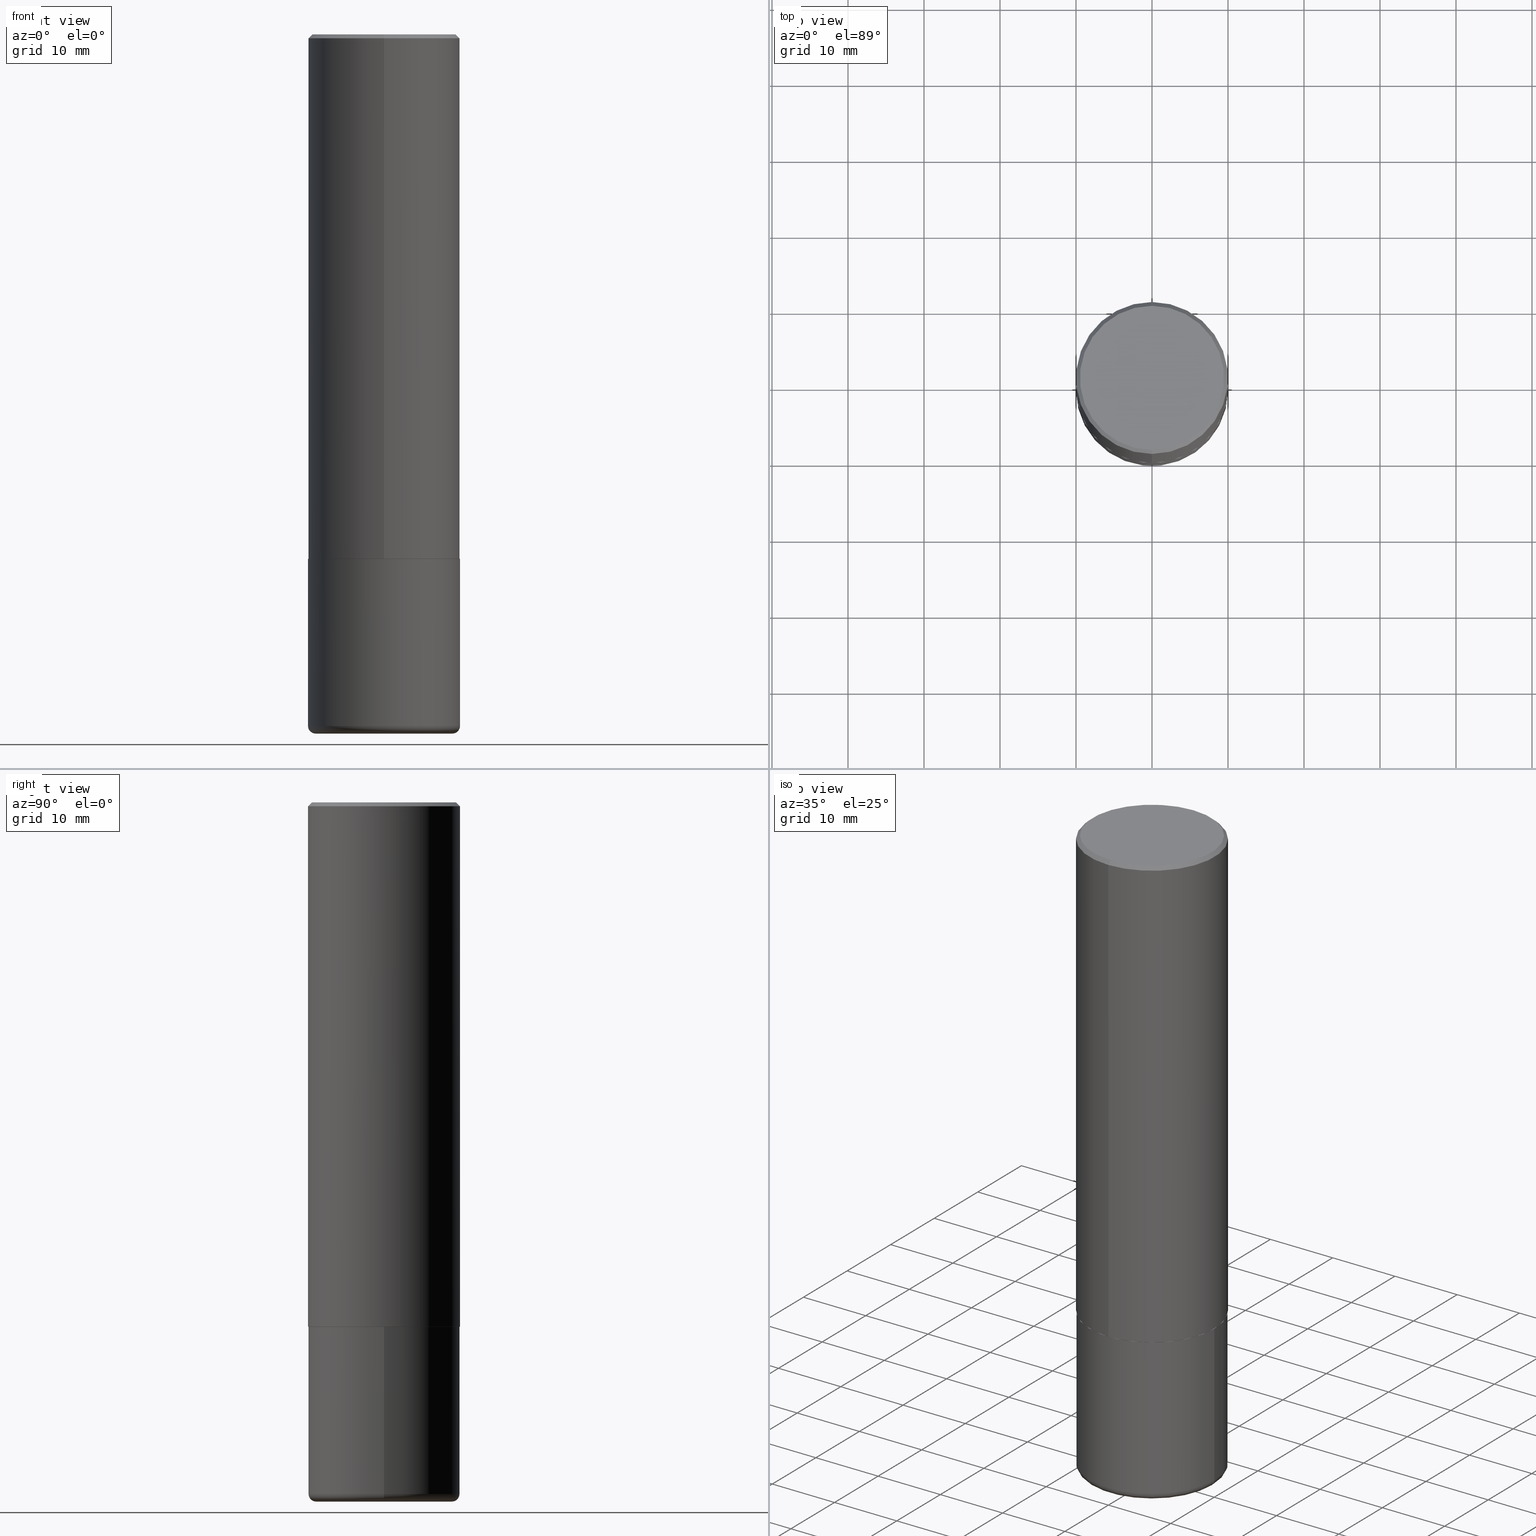
[diagram: canonical four-view strip — front | top / right | iso, engineering-drawing reading convention]
A machine part, canonical four-view strip (front | top / right | iso — engineering-drawing reading convention). The complete STEP part file that produces these views, byte-faithful:
ISO-10303-21;
HEADER;
FILE_DESCRIPTION (( 'STEP AP203' ),
    '1' );
FILE_NAME ('48020.STEP',
    '2024-03-06T19:45:52',
    ( '' ),
    ( '' ),
    'SwSTEP 2.0',
    'SolidWorks 2023',
    '' );
FILE_SCHEMA (( 'CONFIG_CONTROL_DESIGN' ));
ENDSEC;

DATA;
#1 = CARTESIAN_POINT ( 'NONE',  ( 6.641805514718476328E-29, -9.479492231809431685E-15, -2.715500000000000025 ) ) ;
#2 = AXIS2_PLACEMENT_3D ( 'NONE', #28, #180, #24 ) ;
#3 = DIRECTION ( 'NONE',  ( -2.445886766605957047E-29, 3.490882795731700761E-15, 1.000000000000000000 ) ) ;
#4 = APPLICATION_PROTOCOL_DEFINITION ( 'international standard', 'config_control_design', 1994, #119 ) ;
#5 = PERSON_AND_ORGANIZATION ( #239, #131 ) ;
#6 = EDGE_CURVE ( 'NONE', #293, #101, #318, .T. ) ;
#7 = LINE ( 'NONE', #242, #141 ) ;
#8 = EDGE_CURVE ( 'NONE', #14, #297, #207, .T. ) ;
#9 = ORIENTED_EDGE ( 'NONE', *, *, #311, .T. ) ;
#10 = SECURITY_CLASSIFICATION_LEVEL ( 'unclassified' ) ;
#11 = PLANE ( 'NONE',  #305 ) ;
#12 = EDGE_CURVE ( 'NONE', #103, #386, #308, .T. ) ;
#13 = APPROVAL_STATUS ( 'not_yet_approved' ) ;
#14 = VERTEX_POINT ( 'NONE', #49 ) ;
#15 = DIRECTION ( 'NONE',  ( -2.445886766605956767E-29, 3.490882795731700761E-15, 1.000000000000000000 ) ) ;
#16 = CLOSED_SHELL ( 'NONE', ( #216, #237, #290, #247, #115, #138 ) ) ;
#17 = LOCAL_TIME ( 14, 45, 52.00000000000000000, #325 ) ;
#18 = CARTESIAN_POINT ( 'NONE',  ( 8.857488016002564476E-29, -1.264614540928987199E-14, -3.621999999999999886 ) ) ;
#19 = ORIENTED_EDGE ( 'NONE', *, *, #272, .F. ) ;
#20 = DIRECTION ( 'NONE',  ( -2.445468806185136597E-29, 3.491481338843145583E-15, 1.000000000000000000 ) ) ;
#21 = CIRCLE ( 'NONE', #382, 0.3937000000000003830 ) ;
#22 = DIRECTION ( 'NONE',  ( -2.445886766605957047E-29, 3.490882795731700761E-15, 1.000000000000000000 ) ) ;
#23 = APPROVAL ( #13, 'UNSPECIFIED' ) ;
#24 = DIRECTION ( 'NONE',  ( 6.982962677686265133E-15, 1.000000000000000000, -3.491137977679279424E-15 ) ) ;
#25 = CARTESIAN_POINT ( 'NONE',  ( 2.749192406205083217E-15, 0.3936999999999999389, -0.02000000000000146105 ) ) ;
#26 = CIRCLE ( 'NONE', #232, 0.3937000000000000499 ) ;
#27 = AXIS2_PLACEMENT_3D ( 'NONE', #18, #20, #133 ) ;
#28 = CARTESIAN_POINT ( 'NONE',  ( 4.891773533211934694E-31, -6.981765591463430858E-17, -0.02000000000000008715 ) ) ;
#29 = DIRECTION ( 'NONE',  ( -2.445468806185136597E-29, 3.491481338843145583E-15, 1.000000000000000000 ) ) ;
#30 = VERTEX_POINT ( 'NONE', #234 ) ;
#31 = VECTOR ( 'NONE', #59, 39.37007874015748143 ) ;
#32 = VERTEX_POINT ( 'NONE', #364 ) ;
#33 = DIRECTION ( 'NONE',  ( 1.000000000000000000, -6.982962677686265922E-15, 4.876176775795935793E-29 ) ) ;
#34 = DIRECTION ( 'NONE',  ( -2.445468806185136597E-29, 3.491481338843145583E-15, 1.000000000000000000 ) ) ;
#35 = DATE_AND_TIME ( #296, #220 ) ;
#36 = EDGE_LOOP ( 'NONE', ( #288, #74, #71, #347 ) ) ;
#37 = CARTESIAN_POINT ( 'NONE',  ( 2.749192406205083217E-15, 0.3936999999999999389, -0.02000000000000146105 ) ) ;
#38 = CC_DESIGN_DATE_AND_TIME_ASSIGNMENT ( #338, #369, ( #273 ) ) ;
#39 = DIRECTION ( 'NONE',  ( -2.445886766605957047E-29, 3.490882795731700761E-15, 1.000000000000000000 ) ) ;
#40 = DIRECTION ( 'NONE',  ( 1.000000000000000000, 0.000000000000000000, 0.000000000000000000 ) ) ;
#41 = CONICAL_SURFACE ( 'NONE', #183, 0.3937000000000000499, 0.7853981633974467247 ) ;
#42 = ADVANCED_FACE ( 'NONE', ( #334 ), #235, .T. ) ;
#43 = DIRECTION ( 'NONE',  ( -6.982962677686265133E-15, -1.000000000000000000, 4.173946514383900962E-15 ) ) ;
#44 = LOCAL_TIME ( 14, 45, 52.00000000000000000, #174 ) ;
#45 = CARTESIAN_POINT ( 'NONE',  ( 6.644251401485081730E-29, -9.482983114605163631E-15, -2.716499999999999915 ) ) ;
#46 = CARTESIAN_POINT ( 'NONE',  ( -2.742209443527330149E-15, -0.3927000000000095414, -2.716499999999998138 ) ) ;
#47 = PERSON_AND_ORGANIZATION_ROLE ( 'design_supplier' ) ;
#48 = EDGE_CURVE ( 'NONE', #103, #317, #194, .T. ) ;
#49 = CARTESIAN_POINT ( 'NONE',  ( -0.3542999999999999483, -9.919933395171885327E-15, -3.621999999999999886 ) ) ;
#50 = ORIENTED_EDGE ( 'NONE', *, *, #76, .T. ) ;
#51 = EDGE_LOOP ( 'NONE', ( #129, #50 ) ) ;
#52 = AXIS2_PLACEMENT_3D ( 'NONE', #380, #411, #185 ) ;
#53 = CC_DESIGN_APPROVAL ( #23, ( #351 ) ) ;
#54 = ORIENTED_EDGE ( 'NONE', *, *, #278, .T. ) ;
#55 = CYLINDRICAL_SURFACE ( 'NONE', #350, 0.3937000000000002164 ) ;
#56 = CARTESIAN_POINT ( 'NONE',  ( -2.742209443527330149E-15, -0.3927000000000095414, -2.716499999999998138 ) ) ;
#57 = DIRECTION ( 'NONE',  ( -6.982962677686265922E-15, -1.000000000000000000, 3.490882795731701156E-15 ) ) ;
#58 = ORIENTED_EDGE ( 'NONE', *, *, #213, .F. ) ;
#59 = DIRECTION ( 'NONE',  ( -2.445886766605957047E-29, 3.490882795731700761E-15, 1.000000000000000000 ) ) ;
#60 = TOROIDAL_SURFACE ( 'NONE', #197, 0.3543000000000000038, 0.03940000000000005997 ) ;
#61 = AXIS2_PLACEMENT_3D ( 'NONE', #259, #15, #86 ) ;
#62 = FACE_OUTER_BOUND ( 'NONE', #366, .T. ) ;
#63 = DIRECTION ( 'NONE',  ( 7.105427357601001859E-15, 1.000000000000000000, -3.491481338843145583E-15 ) ) ;
#64 = DIRECTION ( 'NONE',  ( -2.445468806185136877E-29, 3.491481338843145188E-15, 1.000000000000000000 ) ) ;
#65 = LOCAL_TIME ( 14, 45, 52.00000000000000000, #389 ) ;
#66 = DIRECTION ( 'NONE',  ( -6.982962677686266711E-15, -1.000000000000000000, 3.491481338843145583E-15 ) ) ;
#67 = APPROVAL_ROLE ( '' ) ;
#68 = CC_DESIGN_PERSON_AND_ORGANIZATION_ASSIGNMENT ( #287, #198, ( #337 ) ) ;
#69 = DIRECTION ( 'NONE',  ( -2.445886766605957047E-29, 3.490882795731700761E-15, 1.000000000000000000 ) ) ;
#70 = DATE_AND_TIME ( #125, #65 ) ;
#71 = ORIENTED_EDGE ( 'NONE', *, *, #348, .F. ) ;
#72 = DIMENSIONAL_EXPONENTS ( 1.000000000000000000, 0.000000000000000000, 0.000000000000000000, 0.000000000000000000, 0.000000000000000000, 0.000000000000000000, 0.000000000000000000 ) ;
#73 = DIRECTION ( 'NONE',  ( -6.982962677686265133E-15, -1.000000000000000000, 3.490882795731700761E-15 ) ) ;
#74 = ORIENTED_EDGE ( 'NONE', *, *, #270, .T. ) ;
#75 = CIRCLE ( 'NONE', #361, 0.3926999999999999935 ) ;
#76 = EDGE_CURVE ( 'NONE', #293, #289, #168, .T. ) ;
#77 = VECTOR ( 'NONE', #231, 39.37007874015748143 ) ;
#78 = DIRECTION ( 'NONE',  ( 2.445886766605957047E-29, -3.490882795731700761E-15, -1.000000000000000000 ) ) ;
#79 = CARTESIAN_POINT ( 'NONE',  ( 0.000000000000000000, 0.000000000000000000, 0.000000000000000000 ) ) ;
#80 = UNCERTAINTY_MEASURE_WITH_UNIT (LENGTH_MEASURE( 1.000000000000000082E-05 ), #245, 'distance_accuracy_value', 'NONE');
#81 = ORIENTED_EDGE ( 'NONE', *, *, #48, .F. ) ;
#82 = CARTESIAN_POINT ( 'NONE',  ( -2.604603702216768831E-45, 3.717410952095981394E-31, 1.064891366917633652E-16 ) ) ;
#83 = ADVANCED_FACE ( 'NONE', ( #368 ), #298, .F. ) ;
#84 = ORIENTED_EDGE ( 'NONE', *, *, #352, .F. ) ;
#85 = ORIENTED_EDGE ( 'NONE', *, *, #352, .T. ) ;
#86 = DIRECTION ( 'NONE',  ( -6.982962677686265922E-15, -1.000000000000000000, 3.490882795731700761E-15 ) ) ;
#87 = VECTOR ( 'NONE', #166, 39.37007874015748143 ) ;
#88 = EDGE_LOOP ( 'NONE', ( #229, #292, #367, #356 ) ) ;
#89 = DIRECTION ( 'NONE',  ( 5.024295867789434219E-15, 0.7071067811867430830, 0.7071067811863519514 ) ) ;
#90 = CALENDAR_DATE ( 2024, 6, 3 ) ;
#91 = DIRECTION ( 'NONE',  ( -2.445468806185136597E-29, 3.491481338843145583E-15, 1.000000000000000000 ) ) ;
#92 = CIRCLE ( 'NONE', #370, 0.03940000000000005997 ) ;
#93 = EDGE_LOOP ( 'NONE', ( #394, #126, #329, #81 ) ) ;
#94 = DIRECTION ( 'NONE',  ( 1.000000000000000000, -6.982962677686267499E-15, 0.000000000000000000 ) ) ;
#95 = DIRECTION ( 'NONE',  ( -6.982962677686265133E-15, -1.000000000000000000, 4.163344669033670901E-15 ) ) ;
#96 = APPROVAL_DATE_TIME ( #253, #310 ) ;
#97 = DIRECTION ( 'NONE',  ( -2.445468806185136597E-29, 3.491481338843145583E-15, 1.000000000000000000 ) ) ;
#98 = MECHANICAL_CONTEXT ( 'NONE', #119, 'mechanical' ) ;
#99 = ADVANCED_FACE ( 'NONE', ( #205 ), #55, .T. ) ;
#100 = DIRECTION ( 'NONE',  ( -6.982962677686265133E-15, -1.000000000000000000, 4.163344669033670901E-15 ) ) ;
#101 = VERTEX_POINT ( 'NONE', #209 ) ;
#102 = CONICAL_SURFACE ( 'NONE', #2, 0.3937000000000000499, 0.7853981633974467247 ) ;
#103 = VERTEX_POINT ( 'NONE', #56 ) ;
#104 = VERTEX_POINT ( 'NONE', #178 ) ;
#105 = DIRECTION ( 'NONE',  ( -6.982962677686265133E-15, -1.000000000000000000, 4.173946514383900962E-15 ) ) ;
#106 = CC_DESIGN_DATE_AND_TIME_ASSIGNMENT ( #70, #161, ( #337 ) ) ;
#107 = ORIENTED_EDGE ( 'NONE', *, *, #179, .T. ) ;
#108 = ORIENTED_EDGE ( 'NONE', *, *, #6, .T. ) ;
#109 = CIRCLE ( 'NONE', #113, 0.3937000000000000499 ) ;
#110 = TOROIDAL_SURFACE ( 'NONE', #377, 0.3543000000000000038, 0.03940000000000005997 ) ;
#111 =( LENGTH_UNIT ( ) NAMED_UNIT ( * ) SI_UNIT ( $, .METRE. ) );
#112 = LENGTH_MEASURE_WITH_UNIT ( LENGTH_MEASURE( 0.02539999999999999897 ), #111 );
#113 = AXIS2_PLACEMENT_3D ( 'NONE', #193, #39, #286 ) ;
#114 = FACE_OUTER_BOUND ( 'NONE', #171, .T. ) ;
#115 = ADVANCED_FACE ( 'NONE', ( #175 ), #110, .T. ) ;
#116 = CARTESIAN_POINT ( 'NONE',  ( 8.761136545038868759E-29, -1.250858104453945120E-14, -3.582599999999999785 ) ) ;
#117 =( NAMED_UNIT ( * ) SI_UNIT ( $, .STERADIAN. ) SOLID_ANGLE_UNIT ( ) );
#118 = CIRCLE ( 'NONE', #136, 0.03940000000000005997 ) ;
#119 = APPLICATION_CONTEXT ( 'configuration controlled 3d designs of mechanical parts and assemblies' ) ;
#120 = CARTESIAN_POINT ( 'NONE',  ( 8.761136545038868759E-29, -1.250858104453945120E-14, -3.582599999999999785 ) ) ;
#121 = DIRECTION ( 'NONE',  ( -2.445468806185136877E-29, 3.491481338843145188E-15, 1.000000000000000000 ) ) ;
#122 = PERSON_AND_ORGANIZATION ( #239, #131 ) ;
#123 = LINE ( 'NONE', #37, #87 ) ;
#124 = DIRECTION ( 'NONE',  ( 1.000000000000000000, -6.982962677686267499E-15, 0.000000000000000000 ) ) ;
#125 = CALENDAR_DATE ( 2024, 6, 3 ) ;
#126 = ORIENTED_EDGE ( 'NONE', *, *, #134, .T. ) ;
#127 = EDGE_LOOP ( 'NONE', ( #322, #326 ) ) ;
#128 = DIRECTION ( 'NONE',  ( -2.445886766605957047E-29, 3.490882795731700761E-15, 1.000000000000000000 ) ) ;
#129 = ORIENTED_EDGE ( 'NONE', *, *, #374, .T. ) ;
#130 = ORIENTED_EDGE ( 'NONE', *, *, #408, .F. ) ;
#131 = ORGANIZATION ( 'UNSPECIFIED', 'UNSPECIFIED', '' ) ;
#132 = PERSON_AND_ORGANIZATION ( #239, #131 ) ;
#133 = DIRECTION ( 'NONE',  ( 1.000000000000000000, -6.982962677686268288E-15, 0.000000000000000000 ) ) ;
#134 = EDGE_CURVE ( 'NONE', #386, #397, #336, .T. ) ;
#135 = CARTESIAN_POINT ( 'NONE',  ( 8.761136545038868759E-29, -1.250858104453945120E-14, -3.582599999999999785 ) ) ;
#136 = AXIS2_PLACEMENT_3D ( 'NONE', #181, #66, #346 ) ;
#137 = CARTESIAN_POINT ( 'NONE',  ( 2.793854037008781336E-15, 0.3926999999999905011, -2.716500000000001691 ) ) ;
#138 = ADVANCED_FACE ( 'NONE', ( #211 ), #238, .T. ) ;
#139 = DIRECTION ( 'NONE',  ( 1.000000000000000000, -6.982962677686266711E-15, 4.883557194083112340E-29 ) ) ;
#140 = CARTESIAN_POINT ( 'NONE',  ( 2.797406750687549496E-15, 0.3936999999999908906, -2.715500000000001801 ) ) ;
#141 = VECTOR ( 'NONE', #22, 39.37007874015748143 ) ;
#142 =( NAMED_UNIT ( * ) PLANE_ANGLE_UNIT ( ) SI_UNIT ( $, .RADIAN. ) );
#143 = DIRECTION ( 'NONE',  ( 1.000000000000000000, -6.982962677686267499E-15, 0.000000000000000000 ) ) ;
#144 = PRODUCT_DEFINITION_SHAPE ( 'NONE', 'NONE',  #337 ) ;
#145 = ADVANCED_FACE ( 'NONE', ( #212 ), #407, .T. ) ;
#146 = AXIS2_PLACEMENT_3D ( 'NONE', #116, #34, #143 ) ;
#147 = ADVANCED_FACE ( 'NONE', ( #114 ), #102, .T. ) ;
#148 = AXIS2_PLACEMENT_3D ( 'NONE', #323, #263, #43 ) ;
#149 = EDGE_LOOP ( 'NONE', ( #54, #328, #84, #254 ) ) ;
#150 = DIRECTION ( 'NONE',  ( 6.982962677686265922E-15, 1.000000000000000000, -3.490882795731700761E-15 ) ) ;
#151 = APPROVAL_DATE_TIME ( #35, #23 ) ;
#152 = DIRECTION ( 'NONE',  ( 1.000000000000000000, -6.982962677686268288E-15, 0.000000000000000000 ) ) ;
#153 = CARTESIAN_POINT ( 'NONE',  ( 2.679362779428219918E-15, 0.3736999999999999211, -1.198053764073172968E-15 ) ) ;
#154 = PERSON_AND_ORGANIZATION_ROLE ( 'creator' ) ;
#155 = CARTESIAN_POINT ( 'NONE',  ( -2.749192406205018924E-15, -0.3937000000000098754, -2.715499999999998249 ) ) ;
#156 = AXIS2_PLACEMENT_3D ( 'NONE', #358, #128, #73 ) ;
#157 = PERSON_AND_ORGANIZATION_ROLE ( 'design_owner' ) ;
#158 = DIRECTION ( 'NONE',  ( -6.982962677686265133E-15, -1.000000000000000000, 3.490882795731700761E-15 ) ) ;
#159 = DIRECTION ( 'NONE',  ( -6.982962677686265133E-15, -1.000000000000000000, 4.173946514383900962E-15 ) ) ;
#160 = CC_DESIGN_PERSON_AND_ORGANIZATION_ASSIGNMENT ( #324, #47, ( #351 ) ) ;
#161 = DATE_TIME_ROLE ( 'creation_date' ) ;
#162 = ORIENTED_EDGE ( 'NONE', *, *, #48, .T. ) ;
#163 = ORIENTED_EDGE ( 'NONE', *, *, #311, .F. ) ;
#164 = PERSON_AND_ORGANIZATION_ROLE ( 'classification_officer' ) ;
#165 = EDGE_CURVE ( 'NONE', #32, #360, #26, .T. ) ;
#166 = DIRECTION ( 'NONE',  ( 4.937700262164540154E-15, 0.7071067811865440200, -0.7071067811865511255 ) ) ;
#167 = DIRECTION ( 'NONE',  ( -2.445886766605957047E-29, 3.490882795731700761E-15, 1.000000000000000000 ) ) ;
#168 = CIRCLE ( 'NONE', #341, 0.3736999999999999211 ) ;
#169 = ORIENTED_EDGE ( 'NONE', *, *, #408, .T. ) ;
#170 = DIRECTION ( 'NONE',  ( 0.000000000000000000, 0.000000000000000000, 1.000000000000000000 ) ) ;
#171 = EDGE_LOOP ( 'NONE', ( #199, #217, #262, #9 ) ) ;
#172 = APPROVAL_DATE_TIME ( #203, #177 ) ;
#173 = CARTESIAN_POINT ( 'NONE',  ( 2.790301323329979648E-15, 0.3926999999999905011, -2.716500000000001691 ) ) ;
#174 = COORDINATED_UNIVERSAL_TIME_OFFSET ( 5, 0, .BEHIND. ) ;
#175 = FACE_OUTER_BOUND ( 'NONE', #279, .T. ) ;
#176 = CIRCLE ( 'NONE', #146, 0.3937000000000000499 ) ;
#177 = APPROVAL ( #208, 'UNSPECIFIED' ) ;
#178 = CARTESIAN_POINT ( 'NONE',  ( -0.3937000000000001054, -9.711174293851935623E-15, -3.582599999999999785 ) ) ;
#179 = EDGE_CURVE ( 'NONE', #317, #101, #214, .T. ) ;
#180 = DIRECTION ( 'NONE',  ( 2.445886766605957047E-29, -3.490882795731700761E-15, -1.000000000000000000 ) ) ;
#181 = CARTESIAN_POINT ( 'NONE',  ( 0.3543000000000000038, -1.498264472124369599E-14, -3.582599999999999785 ) ) ;
#182 = CC_DESIGN_PERSON_AND_ORGANIZATION_ASSIGNMENT ( #284, #154, ( #351 ) ) ;
#183 = AXIS2_PLACEMENT_3D ( 'NONE', #316, #78, #295 ) ;
#184 = CARTESIAN_POINT ( 'NONE',  ( 6.643116012001922516E-29, -9.484609056967403598E-15, -2.716499999999999915 ) ) ;
#185 = DIRECTION ( 'NONE',  ( -6.982962677686265922E-15, -1.000000000000000000, 3.490882795731701156E-15 ) ) ;
#186 = DIRECTION ( 'NONE',  ( 1.000000000000000000, -6.982962677686266711E-15, 4.883557194083112340E-29 ) ) ;
#187 = EDGE_CURVE ( 'NONE', #297, #30, #118, .T. ) ;
#188 = DIRECTION ( 'NONE',  ( -2.445468806185136597E-29, 3.491481338843145583E-15, 1.000000000000000000 ) ) ;
#189 = EDGE_LOOP ( 'NONE', ( #230, #108, #85, #218 ) ) ;
#190 = CARTESIAN_POINT ( 'NONE',  ( -0.3937000000000000499, 2.797406750687514786E-15, -1.936584745033356735E-29 ) ) ;
#191 = APPROVAL_PERSON_ORGANIZATION ( #354, #310, #67 ) ;
#192 = VECTOR ( 'NONE', #89, 39.37007874015748143 ) ;
#193 = CARTESIAN_POINT ( 'NONE',  ( 4.891773533211934694E-31, -6.981765591463430858E-17, -0.02000000000000008715 ) ) ;
#194 = LINE ( 'NONE', #46, #77 ) ;
#195 = FACE_OUTER_BOUND ( 'NONE', #228, .T. ) ;
#196 = CALENDAR_DATE ( 2024, 6, 3 ) ;
#197 = AXIS2_PLACEMENT_3D ( 'NONE', #120, #91, #186 ) ;
#198 = PERSON_AND_ORGANIZATION_ROLE ( 'creator' ) ;
#199 = ORIENTED_EDGE ( 'NONE', *, *, #6, .F. ) ;
#200 = PERSON_AND_ORGANIZATION ( #239, #131 ) ;
#201 = EDGE_CURVE ( 'NONE', #104, #32, #277, .T. ) ;
#202 = CARTESIAN_POINT ( 'NONE',  ( -2.700978061722651252E-15, -0.3937000000000001054, -0.01999999999999870978 ) ) ;
#203 = DATE_AND_TIME ( #90, #44 ) ;
#204 = AXIS2_PLACEMENT_3D ( 'NONE', #79, #170, #40 ) ;
#205 = FACE_OUTER_BOUND ( 'NONE', #225, .T. ) ;
#206 = APPROVAL_PERSON_ORGANIZATION ( #132, #177, #373 ) ;
#207 = CIRCLE ( 'NONE', #27, 0.3542999999999999483 ) ;
#208 = APPROVAL_STATUS ( 'not_yet_approved' ) ;
#209 = CARTESIAN_POINT ( 'NONE',  ( -2.700978061722651252E-15, -0.3937000000000001054, -0.01999999999999870978 ) ) ;
#210 = CARTESIAN_POINT ( 'NONE',  ( 8.857488016002564476E-29, -1.264614540928987199E-14, -3.621999999999999886 ) ) ;
#211 = FACE_OUTER_BOUND ( 'NONE', #233, .T. ) ;
#212 = FACE_OUTER_BOUND ( 'NONE', #149, .T. ) ;
#213 = EDGE_CURVE ( 'NONE', #297, #14, #313, .T. ) ;
#214 = LINE ( 'NONE', #344, #31 ) ;
#215 = AXIS2_PLACEMENT_3D ( 'NONE', #349, #314, #150 ) ;
#216 = ADVANCED_FACE ( 'NONE', ( #62 ), #406, .T. ) ;
#217 = ORIENTED_EDGE ( 'NONE', *, *, #374, .F. ) ;
#218 = ORIENTED_EDGE ( 'NONE', *, *, #282, .F. ) ;
#219 = PLANE ( 'NONE',  #215 ) ;
#220 = LOCAL_TIME ( 14, 45, 52.00000000000000000, #261 ) ;
#221 = CARTESIAN_POINT ( 'NONE',  ( 6.643116012001922516E-29, -9.484609056967403598E-15, -2.716499999999999915 ) ) ;
#222 = DIRECTION ( 'NONE',  ( -1.000000000000000000, 6.982962677686265922E-15, -4.876176775795935793E-29 ) ) ;
#223 = ORIENTED_EDGE ( 'NONE', *, *, #384, .F. ) ;
#224 = DIRECTION ( 'NONE',  ( -6.982962677686265133E-15, -1.000000000000000000, 3.491137977679279424E-15 ) ) ;
#225 = EDGE_LOOP ( 'NONE', ( #223, #396, #107, #163 ) ) ;
#226 = CARTESIAN_POINT ( 'NONE',  ( 0.3937000000000000499, -1.223380146317248839E-14, -2.716499999999999915 ) ) ;
#227 = CIRCLE ( 'NONE', #156, 0.3736999999999999211 ) ;
#228 = EDGE_LOOP ( 'NONE', ( #258, #169, #162, #393 ) ) ;
#229 = ORIENTED_EDGE ( 'NONE', *, *, #201, .F. ) ;
#230 = ORIENTED_EDGE ( 'NONE', *, *, #76, .F. ) ;
#231 = DIRECTION ( 'NONE',  ( -4.937700262165896205E-15, -0.7071067811867381980, 0.7071067811863568364 ) ) ;
#232 = AXIS2_PLACEMENT_3D ( 'NONE', #274, #405, #243 ) ;
#233 = EDGE_LOOP ( 'NONE', ( #58, #390 ) ) ;
#234 = CARTESIAN_POINT ( 'NONE',  ( 0.3937000000000001054, -1.525777345074453441E-14, -3.582599999999999785 ) ) ;
#235 = CONICAL_SURFACE ( 'NONE', #148, 0.3926999999999999935, 0.7853981633977213939 ) ;
#236 = DIRECTION ( 'NONE',  ( -1.000000000000000000, 6.982962677686265922E-15, -4.876176775795935793E-29 ) ) ;
#237 = ADVANCED_FACE ( 'NONE', ( #415 ), #60, .T. ) ;
#238 = PLANE ( 'NONE',  #402 ) ;
#239 = PERSON ( 'UNSPECIFIED', 'UNSPECIFIED', 'UNSPECIFIED', ('UNSPECIFIED'), ('UNSPECIFIED'), ('UNSPECIFIED') ) ;
#240 = CC_DESIGN_APPROVAL ( #310, ( #337 ) ) ;
#241 = LOCAL_TIME ( 14, 45, 52.00000000000000000, #294 ) ;
#242 = CARTESIAN_POINT ( 'NONE',  ( 2.797406750687515575E-15, 0.3937000000000002164, -1.374360556679571455E-15 ) ) ;
#243 = DIRECTION ( 'NONE',  ( 1.000000000000000000, -6.982962677686267499E-15, 0.000000000000000000 ) ) ;
#244 = FACE_OUTER_BOUND ( 'NONE', #88, .T. ) ;
#245 =( CONVERSION_BASED_UNIT ( 'INCH', #112 ) LENGTH_UNIT ( ) NAMED_UNIT ( #72 ) );
#246 = DIRECTION ( 'NONE',  ( -2.445468806185136597E-29, 3.491481338843145583E-15, 1.000000000000000000 ) ) ;
#247 = ADVANCED_FACE ( 'NONE', ( #244 ), #250, .T. ) ;
#248 = AXIS2_PLACEMENT_3D ( 'NONE', #362, #97, #124 ) ;
#249 = CC_DESIGN_SECURITY_CLASSIFICATION ( #273, ( #351 ) ) ;
#250 = CYLINDRICAL_SURFACE ( 'NONE', #303, 0.3937000000000000499 ) ;
#251 = CIRCLE ( 'NONE', #345, 0.3937000000000000499 ) ;
#252 = DIRECTION ( 'NONE',  ( 2.438088387897960049E-29, -3.491481338843145188E-15, -1.000000000000000000 ) ) ;
#253 = DATE_AND_TIME ( #315, #17 ) ;
#254 = ORIENTED_EDGE ( 'NONE', *, *, #179, .F. ) ;
#255 = ADVANCED_FACE ( 'NONE', ( #412 ), #219, .F. ) ;
#256 = DIRECTION ( 'NONE',  ( -2.445886766605957047E-29, 3.490882795731700761E-15, 1.000000000000000000 ) ) ;
#257 = MANIFOLD_SOLID_BREP ( 'Body-Move/Copy2[1]', #16 ) ;
#258 = ORIENTED_EDGE ( 'NONE', *, *, #134, .F. ) ;
#259 = CARTESIAN_POINT ( 'NONE',  ( 6.644251401485081730E-29, -9.482983114605163631E-15, -2.716499999999999915 ) ) ;
#260 = CARTESIAN_POINT ( 'NONE',  ( 0.3542999999999999483, -1.512020908599411520E-14, -3.621999999999999886 ) ) ;
#261 = COORDINATED_UNIVERSAL_TIME_OFFSET ( 5, 0, .BEHIND. ) ;
#262 = ORIENTED_EDGE ( 'NONE', *, *, #282, .T. ) ;
#263 = DIRECTION ( 'NONE',  ( -2.445886766605957047E-29, 3.490882795731700761E-15, 1.000000000000000000 ) ) ;
#264 =( GEOMETRIC_REPRESENTATION_CONTEXT ( 3 ) GLOBAL_UNCERTAINTY_ASSIGNED_CONTEXT ( ( #80 ) ) GLOBAL_UNIT_ASSIGNED_CONTEXT ( ( #245, #142, #117 ) ) REPRESENTATION_CONTEXT ( 'NONE', 'WORKASPACE' ) );
#265 = EDGE_CURVE ( 'NONE', #30, #360, #283, .T. ) ;
#266 = ORIENTED_EDGE ( 'NONE', *, *, #271, .F. ) ;
#267 = CARTESIAN_POINT ( 'NONE',  ( 6.644251401485081730E-29, -9.482983114605163631E-15, -2.716499999999999915 ) ) ;
#268 = CONICAL_SURFACE ( 'NONE', #376, 0.3926999999999999935, 0.7853981633977213939 ) ;
#269 = DIRECTION ( 'NONE',  ( 2.438088387897960049E-29, -3.491481338843145188E-15, -1.000000000000000000 ) ) ;
#270 = EDGE_CURVE ( 'NONE', #14, #104, #92, .T. ) ;
#271 = EDGE_CURVE ( 'NONE', #104, #30, #176, .T. ) ;
#272 = EDGE_CURVE ( 'NONE', #360, #32, #319, .T. ) ;
#273 = SECURITY_CLASSIFICATION ( '', '', #10 ) ;
#274 = CARTESIAN_POINT ( 'NONE',  ( 6.643116012001922516E-29, -9.484609056967403598E-15, -2.716499999999999915 ) ) ;
#275 = ADVANCED_FACE ( 'NONE', ( #353 ), #41, .T. ) ;
#276 = ORIENTED_EDGE ( 'NONE', *, *, #187, .T. ) ;
#277 = LINE ( 'NONE', #190, #307 ) ;
#278 = EDGE_CURVE ( 'NONE', #317, #397, #285, .T. ) ;
#279 = EDGE_LOOP ( 'NONE', ( #312, #301, #276, #266 ) ) ;
#280 = VECTOR ( 'NONE', #121, 39.37007874015748143 ) ;
#281 = CARTESIAN_POINT ( 'NONE',  ( 0.000000000000000000, 0.000000000000000000, 0.000000000000000000 ) ) ;
#282 = EDGE_CURVE ( 'NONE', #289, #395, #123, .T. ) ;
#283 = LINE ( 'NONE', #418, #280 ) ;
#284 = PERSON_AND_ORGANIZATION ( #239, #131 ) ;
#285 = CIRCLE ( 'NONE', #339, 0.3937000000000003830 ) ;
#286 = DIRECTION ( 'NONE',  ( -6.982962677686265133E-15, -1.000000000000000000, 3.491137977679279424E-15 ) ) ;
#287 = PERSON_AND_ORGANIZATION ( #239, #131 ) ;
#288 = ORIENTED_EDGE ( 'NONE', *, *, #213, .T. ) ;
#289 = VERTEX_POINT ( 'NONE', #153 ) ;
#290 = ADVANCED_FACE ( 'NONE', ( #388 ), #11, .F. ) ;
#291 = CARTESIAN_POINT ( 'NONE',  ( -2.632373081744935921E-15, -0.3736999999999999211, 1.411032037456699427E-15 ) ) ;
#292 = ORIENTED_EDGE ( 'NONE', *, *, #271, .T. ) ;
#293 = VERTEX_POINT ( 'NONE', #291 ) ;
#294 = COORDINATED_UNIVERSAL_TIME_OFFSET ( 5, 0, .BEHIND. ) ;
#295 = DIRECTION ( 'NONE',  ( 6.982962677686265133E-15, 1.000000000000000000, -3.491137977679279424E-15 ) ) ;
#296 = CALENDAR_DATE ( 2024, 6, 3 ) ;
#297 = VERTEX_POINT ( 'NONE', #260 ) ;
#298 = PLANE ( 'NONE',  #61 ) ;
#299 = AXIS2_PLACEMENT_3D ( 'NONE', #184, #410, #94 ) ;
#300 = DIRECTION ( 'NONE',  ( -4.851104656540955597E-15, -0.7071067811865487940, -0.7071067811865461294 ) ) ;
#301 = ORIENTED_EDGE ( 'NONE', *, *, #8, .T. ) ;
#302 = PRODUCT_RELATED_PRODUCT_CATEGORY ( 'detail', '', ( #342 ) ) ;
#303 = AXIS2_PLACEMENT_3D ( 'NONE', #385, #29, #33 ) ;
#304 = DIRECTION ( 'NONE',  ( -6.982962677686265133E-15, -1.000000000000000000, 4.173946514383900962E-15 ) ) ;
#305 = AXIS2_PLACEMENT_3D ( 'NONE', #221, #252, #222 ) ;
#306 = EDGE_CURVE ( 'NONE', #397, #317, #21, .T. ) ;
#307 = VECTOR ( 'NONE', #64, 39.37007874015748143 ) ;
#308 = CIRCLE ( 'NONE', #371, 0.3926999999999999935 ) ;
#309 = DIRECTION ( 'NONE',  ( 1.000000000000000000, -6.982962677686265922E-15, 4.876176775795935793E-29 ) ) ;
#310 = APPROVAL ( #359, 'UNSPECIFIED' ) ;
#311 = EDGE_CURVE ( 'NONE', #395, #101, #109, .T. ) ;
#312 = ORIENTED_EDGE ( 'NONE', *, *, #270, .F. ) ;
#313 = CIRCLE ( 'NONE', #399, 0.3542999999999999483 ) ;
#314 = DIRECTION ( 'NONE',  ( 2.445886766605956767E-29, -3.490882795731700761E-15, -1.000000000000000000 ) ) ;
#315 = CALENDAR_DATE ( 2024, 6, 3 ) ;
#316 = CARTESIAN_POINT ( 'NONE',  ( 4.891773533211934694E-31, -6.981765591463430858E-17, -0.02000000000000008715 ) ) ;
#317 = VERTEX_POINT ( 'NONE', #155 ) ;
#318 = LINE ( 'NONE', #202, #333 ) ;
#319 = CIRCLE ( 'NONE', #299, 0.3937000000000000499 ) ;
#320 = DIRECTION ( 'NONE',  ( -2.445886766605957047E-29, 3.490882795731700761E-15, 1.000000000000000000 ) ) ;
#321 = APPROVAL_ROLE ( '' ) ;
#322 = ORIENTED_EDGE ( 'NONE', *, *, #272, .T. ) ;
#323 = CARTESIAN_POINT ( 'NONE',  ( 6.644251401485081730E-29, -9.482983114605163631E-15, -2.716499999999999915 ) ) ;
#324 = PERSON_AND_ORGANIZATION ( #239, #131 ) ;
#325 = COORDINATED_UNIVERSAL_TIME_OFFSET ( 5, 0, .BEHIND. ) ;
#326 = ORIENTED_EDGE ( 'NONE', *, *, #165, .T. ) ;
#327 = DIRECTION ( 'NONE',  ( -2.445886766605957047E-29, 3.490882795731700761E-15, 1.000000000000000000 ) ) ;
#328 = ORIENTED_EDGE ( 'NONE', *, *, #384, .T. ) ;
#329 = ORIENTED_EDGE ( 'NONE', *, *, #278, .F. ) ;
#330 = CLOSED_SHELL ( 'NONE', ( #42, #145, #275, #147, #99, #381, #83, #255 ) ) ;
#331 = CIRCLE ( 'NONE', #248, 0.3937000000000000499 ) ;
#332 = ORIENTED_EDGE ( 'NONE', *, *, #348, .T. ) ;
#333 = VECTOR ( 'NONE', #300, 39.37007874015748854 ) ;
#334 = FACE_OUTER_BOUND ( 'NONE', #93, .T. ) ;
#335 = SHAPE_DEFINITION_REPRESENTATION ( #144, #416 ) ;
#336 = LINE ( 'NONE', #173, #192 ) ;
#337 = PRODUCT_DEFINITION ( 'UNKNOWN', '', #351, #378 ) ;
#338 = DATE_AND_TIME ( #196, #241 ) ;
#339 = AXIS2_PLACEMENT_3D ( 'NONE', #1, #69, #95 ) ;
#340 = CC_DESIGN_APPROVAL ( #177, ( #273 ) ) ;
#341 = AXIS2_PLACEMENT_3D ( 'NONE', #82, #167, #158 ) ;
#342 = PRODUCT ( '48020', '48020', '', ( #98 ) ) ;
#343 = APPLICATION_CONTEXT ( 'configuration controlled 3d designs of mechanical parts and assemblies' ) ;
#344 = CARTESIAN_POINT ( 'NONE',  ( -2.749192406205084400E-15, -0.3937000000000002164, 1.374360556679571455E-15 ) ) ;
#345 = AXIS2_PLACEMENT_3D ( 'NONE', #392, #3, #224 ) ;
#346 = DIRECTION ( 'NONE',  ( 1.000000000000000000, -6.982962677686267499E-15, 0.000000000000000000 ) ) ;
#347 = ORIENTED_EDGE ( 'NONE', *, *, #187, .F. ) ;
#348 = EDGE_CURVE ( 'NONE', #30, #104, #331, .T. ) ;
#349 = CARTESIAN_POINT ( 'NONE',  ( 2.609533152651356620E-15, 0.3736999999999999211, -1.251298332419054533E-15 ) ) ;
#350 = AXIS2_PLACEMENT_3D ( 'NONE', #391, #372, #57 ) ;
#351 = PRODUCT_DEFINITION_FORMATION_WITH_SPECIFIED_SOURCE ( 'ANY', '', #342, .NOT_KNOWN. ) ;
#352 = EDGE_CURVE ( 'NONE', #101, #395, #251, .T. ) ;
#353 = FACE_OUTER_BOUND ( 'NONE', #189, .T. ) ;
#354 = PERSON_AND_ORGANIZATION ( #239, #131 ) ;
#355 = CARTESIAN_POINT ( 'NONE',  ( 6.641805514718476328E-29, -9.479492231809431685E-15, -2.715500000000000025 ) ) ;
#356 = ORIENTED_EDGE ( 'NONE', *, *, #165, .F. ) ;
#357 = ORIENTED_EDGE ( 'NONE', *, *, #201, .T. ) ;
#358 = CARTESIAN_POINT ( 'NONE',  ( -2.604603702216768831E-45, 3.717410952095981394E-31, 1.064891366917633652E-16 ) ) ;
#359 = APPROVAL_STATUS ( 'not_yet_approved' ) ;
#360 = VERTEX_POINT ( 'NONE', #226 ) ;
#361 = AXIS2_PLACEMENT_3D ( 'NONE', #400, #379, #304 ) ;
#362 = CARTESIAN_POINT ( 'NONE',  ( 8.761136545038868759E-29, -1.250858104453945120E-14, -3.582599999999999785 ) ) ;
#363 = ORIENTED_EDGE ( 'NONE', *, *, #12, .F. ) ;
#364 = CARTESIAN_POINT ( 'NONE',  ( -0.3937000000000000499, -8.199188300065914189E-15, -2.716499999999999915 ) ) ;
#365 = APPLICATION_PROTOCOL_DEFINITION ( 'international standard', 'config_control_design', 1994, #343 ) ;
#366 = EDGE_LOOP ( 'NONE', ( #332, #357, #19, #398 ) ) ;
#367 = ORIENTED_EDGE ( 'NONE', *, *, #265, .T. ) ;
#368 = FACE_OUTER_BOUND ( 'NONE', #417, .T. ) ;
#369 = DATE_TIME_ROLE ( 'classification_date' ) ;
#370 = AXIS2_PLACEMENT_3D ( 'NONE', #387, #63, #383 ) ;
#371 = AXIS2_PLACEMENT_3D ( 'NONE', #267, #327, #105 ) ;
#372 = DIRECTION ( 'NONE',  ( -2.445886766605957047E-29, 3.490882795731700761E-15, 1.000000000000000000 ) ) ;
#373 = APPROVAL_ROLE ( '' ) ;
#374 = EDGE_CURVE ( 'NONE', #289, #293, #227, .T. ) ;
#375 = DIRECTION ( 'NONE',  ( -2.445468806185136597E-29, 3.491481338843145583E-15, 1.000000000000000000 ) ) ;
#376 = AXIS2_PLACEMENT_3D ( 'NONE', #45, #320, #159 ) ;
#377 = AXIS2_PLACEMENT_3D ( 'NONE', #135, #375, #139 ) ;
#378 = DESIGN_CONTEXT ( 'detailed design', #343, 'design' ) ;
#379 = DIRECTION ( 'NONE',  ( -2.445886766605957047E-29, 3.490882795731700761E-15, 1.000000000000000000 ) ) ;
#380 = CARTESIAN_POINT ( 'NONE',  ( 0.000000000000000000, 0.000000000000000000, 0.000000000000000000 ) ) ;
#381 = ADVANCED_FACE ( 'NONE', ( #195 ), #268, .T. ) ;
#382 = AXIS2_PLACEMENT_3D ( 'NONE', #355, #256, #100 ) ;
#383 = DIRECTION ( 'NONE',  ( -1.000000000000000000, 7.105427357601014480E-15, 0.000000000000000000 ) ) ;
#384 = EDGE_CURVE ( 'NONE', #397, #395, #7, .T. ) ;
#385 = CARTESIAN_POINT ( 'NONE',  ( 0.000000000000000000, 0.000000000000000000, 0.000000000000000000 ) ) ;
#386 = VERTEX_POINT ( 'NONE', #137 ) ;
#387 = CARTESIAN_POINT ( 'NONE',  ( -0.3543000000000000038, -9.991128131741415818E-15, -3.582599999999999785 ) ) ;
#388 = FACE_OUTER_BOUND ( 'NONE', #127, .T. ) ;
#389 = COORDINATED_UNIVERSAL_TIME_OFFSET ( 5, 0, .BEHIND. ) ;
#390 = ORIENTED_EDGE ( 'NONE', *, *, #8, .F. ) ;
#391 = CARTESIAN_POINT ( 'NONE',  ( 0.000000000000000000, 0.000000000000000000, 0.000000000000000000 ) ) ;
#392 = CARTESIAN_POINT ( 'NONE',  ( 4.891773533211934694E-31, -6.981765591463430858E-17, -0.02000000000000008715 ) ) ;
#393 = ORIENTED_EDGE ( 'NONE', *, *, #306, .F. ) ;
#394 = ORIENTED_EDGE ( 'NONE', *, *, #12, .T. ) ;
#395 = VERTEX_POINT ( 'NONE', #25 ) ;
#396 = ORIENTED_EDGE ( 'NONE', *, *, #306, .T. ) ;
#397 = VERTEX_POINT ( 'NONE', #140 ) ;
#398 = ORIENTED_EDGE ( 'NONE', *, *, #265, .F. ) ;
#399 = AXIS2_PLACEMENT_3D ( 'NONE', #409, #188, #152 ) ;
#400 = CARTESIAN_POINT ( 'NONE',  ( 6.644251401485081730E-29, -9.482983114605163631E-15, -2.716499999999999915 ) ) ;
#401 = CC_DESIGN_PERSON_AND_ORGANIZATION_ASSIGNMENT ( #200, #164, ( #273 ) ) ;
#402 = AXIS2_PLACEMENT_3D ( 'NONE', #210, #269, #236 ) ;
#403 = APPROVAL_PERSON_ORGANIZATION ( #5, #23, #321 ) ;
#404 = MANIFOLD_SOLID_BREP ( 'Body-Move/Copy2[2]', #330 ) ;
#405 = DIRECTION ( 'NONE',  ( -2.445468806185136597E-29, 3.491481338843145583E-15, 1.000000000000000000 ) ) ;
#406 = CYLINDRICAL_SURFACE ( 'NONE', #414, 0.3937000000000000499 ) ;
#407 = CYLINDRICAL_SURFACE ( 'NONE', #52, 0.3937000000000002164 ) ;
#408 = EDGE_CURVE ( 'NONE', #386, #103, #75, .T. ) ;
#409 = CARTESIAN_POINT ( 'NONE',  ( 8.857488016002564476E-29, -1.264614540928987199E-14, -3.621999999999999886 ) ) ;
#410 = DIRECTION ( 'NONE',  ( -2.445468806185136597E-29, 3.491481338843145583E-15, 1.000000000000000000 ) ) ;
#411 = DIRECTION ( 'NONE',  ( -2.445886766605957047E-29, 3.490882795731700761E-15, 1.000000000000000000 ) ) ;
#412 = FACE_OUTER_BOUND ( 'NONE', #51, .T. ) ;
#413 = CC_DESIGN_PERSON_AND_ORGANIZATION_ASSIGNMENT ( #122, #157, ( #342 ) ) ;
#414 = AXIS2_PLACEMENT_3D ( 'NONE', #281, #246, #309 ) ;
#415 = FACE_OUTER_BOUND ( 'NONE', #36, .T. ) ;
#416 = ADVANCED_BREP_SHAPE_REPRESENTATION ( '48020', ( #257, #404, #204 ), #264 ) ;
#417 = EDGE_LOOP ( 'NONE', ( #363, #130 ) ) ;
#418 = CARTESIAN_POINT ( 'NONE',  ( 0.3937000000000000499, -2.749192406205083217E-15, 1.919750796630860172E-29 ) ) ;
ENDSEC;
END-ISO-10303-21;
